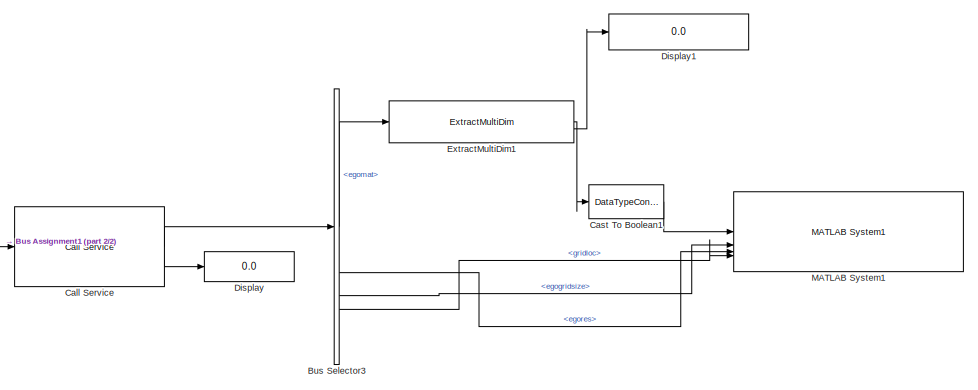
[diagram: root canvas - part 1/2, right side, full height]
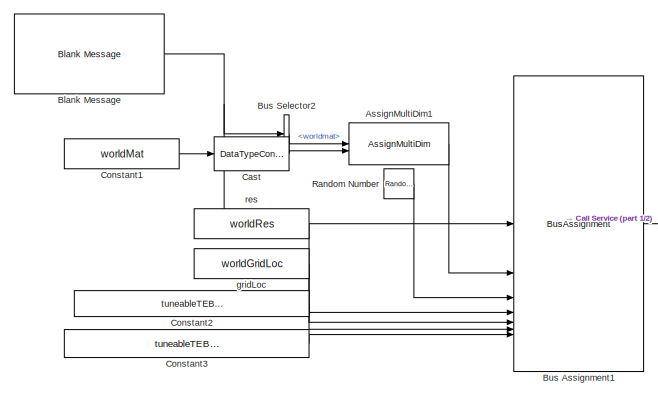
[diagram: root canvas - part 2/2, left side, full height]
MODEL slx_26b8e9db9e33
KIND model
CONFIG AbsTol = auto
CONFIG EnableMultiTasking = off
CONFIG FixedStep = auto
CONFIG InitFcn = % Make sure server is running\nsvrMdlName = 'localMapServer';\nload_system(svrMdlName);\nset_param(svrMdlName,'SimulationCommand','Start');\npause(1);
CONFIG MaxStep = auto
CONFIG MinStep = auto
CONFIG RelTol = 1e-3
CONFIG SampleTimeConstraint = Unconstrained
CONFIG SolverName = FixedStepAuto
CONFIG StartTime = 0.0
CONFIG StopFcn = % Make sure server is running\nsvrMdlName = 'localMapServer';\nload_system(svrMdlName);\nset_param(svrMdlName,'SimulationCommand','Stop');
CONFIG StopTime = 10.0
WORKSPACE source: mxarray member
WORKSPACE SL_ROS_VariableLengthArrays_MaxSizes: object (value not decoded)
BLOCK [Reference] AssignMultiDim1  REF=roshelperlib/AssignMultiDim  (lib defined in slx_3328ea0e13a5)
  SourceBlock = roshelperlib/AssignMultiDim
  SourceType = SubSystem
BLOCK [Reference] Blank Message  REF=ros2lib/Blank Message  (lib defined in slx_3c1549211f48)
  SourceBlock = ros2lib/Blank Message
  SourceType = ROS2 Blank Message
BLOCK [BusAssignment] Bus Assignment1
  AssignedSignals = worldmat,curpose,worldresolution,worldgridloc,maxvelocity,lookaheadtime
BLOCK [BusSelector] Bus Selector2
  OutputSignals = worldmat
BLOCK [BusSelector] Bus Selector3
  OutputSignals = egomat,egores,egogridsize,gridloc
BLOCK [Reference] Call Service  REF=ros2lib/Call Service  (lib defined in slx_3c1549211f48)
  SourceBlock = ros2lib/Call Service
  SourceType = ROS2 Call Service
BLOCK [DataTypeConversion] Cast
  OutDataTypeStr = int8
  RndMeth = Floor
  SaturateOnIntegerOverflow = off
BLOCK [DataTypeConversion] Cast To Boolean1
  OutDataTypeStr = boolean
  RndMeth = Floor
  SaturateOnIntegerOverflow = off
BLOCK [Constant] Constant1
  Value = worldMat
BLOCK [Constant] Constant2
  Value = tuneableTEBParams.MaxVelocity(1)
BLOCK [Constant] Constant3
  Value = tuneableTEBParams.LookaheadTime
BLOCK [Display] Display
  Decimation = 1
BLOCK [Display] Display1
  Decimation = 1
BLOCK [Reference] ExtractMultiDim1  REF=roshelperlib/ExtractMultiDim  (lib defined in slx_3328ea0e13a5)
  SourceBlock = roshelperlib/ExtractMultiDim
BLOCK [Reference] MATLAB System1  REF=roshelperlib/MATLAB System1  (lib defined in slx_3328ea0e13a5)
  SourceBlock = roshelperlib/MATLAB System1
  SourceType = exampleHelperMapVisualizerSys
BLOCK [RandomNumber] Random Number
  Mean = [500 500 0]
  SampleTime = .2
  Variance = [100 100 0]
BLOCK [Constant] gridLoc
  Value = worldGridLoc
  VectorParams1D = off
BLOCK [Constant] res
  Value = worldRes
LINE AssignMultiDim1:1 -> Bus Assignment1:2
NET Blank Message:1 -> Bus Assignment1:1, Bus Selector2:1
LINE Bus Assignment1:1 -> Call Service:1
LINE Bus Selector2:1 -> AssignMultiDim1:1
LINE Bus Selector3:1 -> ExtractMultiDim1:1
LINE Bus Selector3:2 -> MATLAB System1:3
LINE Bus Selector3:3 -> MATLAB System1:2
LINE Bus Selector3:4 -> MATLAB System1:4
LINE Call Service:1 -> Bus Selector3:1
LINE Call Service:2 -> Display:1
LINE Cast To Boolean1:1 -> MATLAB System1:1
LINE Cast:1 -> AssignMultiDim1:2
LINE Constant1:1 -> Cast:1
LINE Constant2:1 -> Bus Assignment1:6
LINE Constant3:1 -> Bus Assignment1:7
LINE ExtractMultiDim1:1 -> Cast To Boolean1:1
LINE ExtractMultiDim1:2 -> Display1:1
LINE Random Number:1 -> Bus Assignment1:3
LINE gridLoc:1 -> Bus Assignment1:5
LINE res:1 -> Bus Assignment1:4
note: NET lines group one-source signal fan-out (src -> all destinations, sorted); 1:1 wires keep LINE
